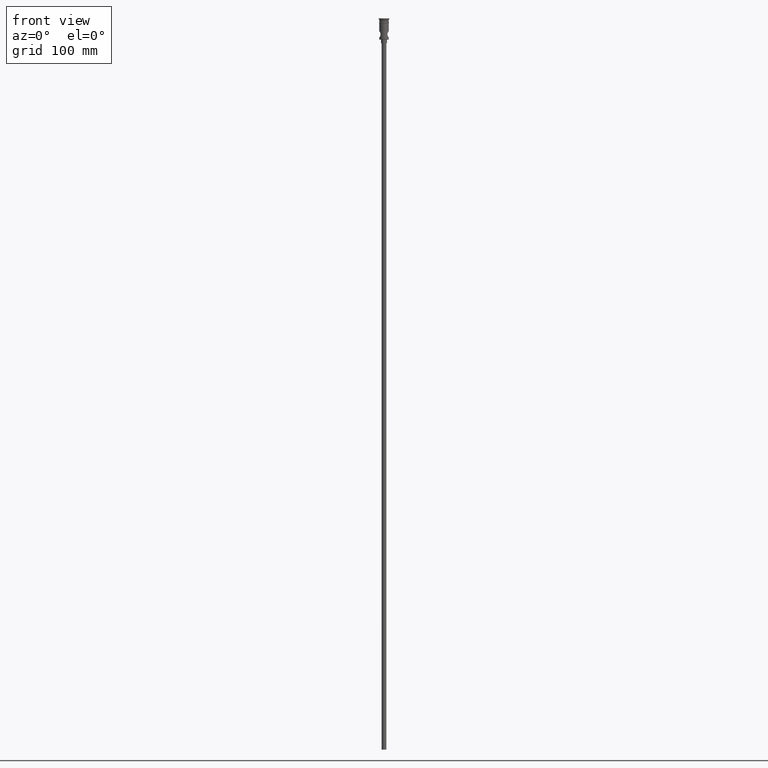
[diagram: clean part render]
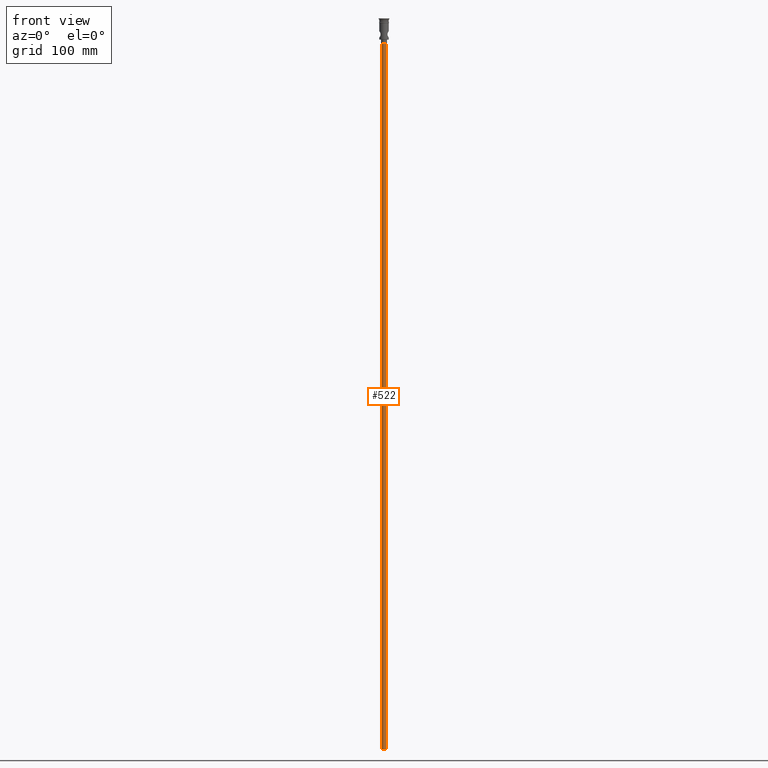
[diagram: same view with one face highlighted and labeled with its STEP entity id]
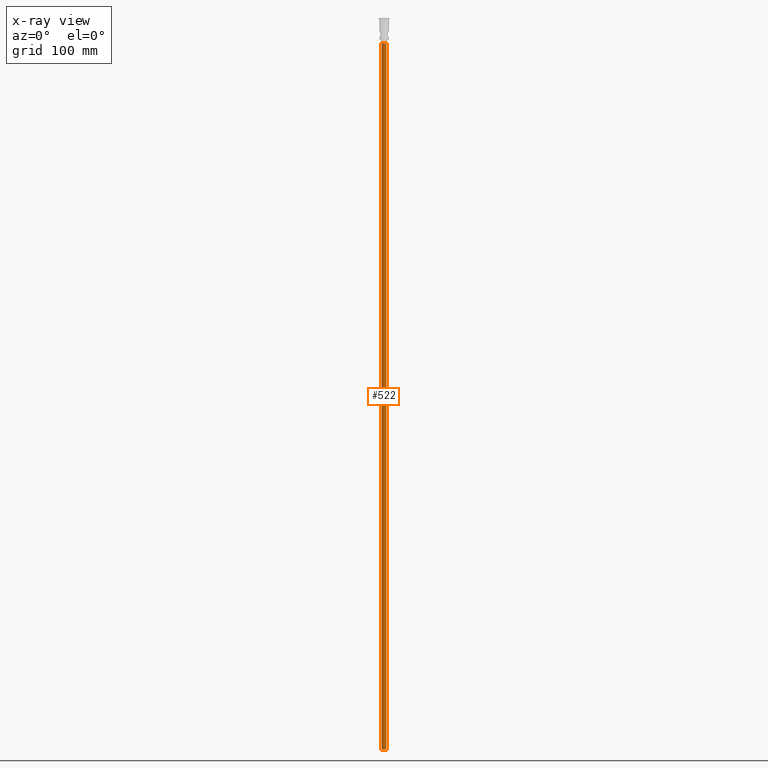
[diagram: x-ray of the same camera — body ghosted, the highlighted face saturated]
A machine part, front view. The second image highlights one B-rep face of the part: STEP entity #522.
The next image is the same camera in x-ray: the body ghosted, the highlighted face saturated — about 0% of this face is hidden behind the body in this view.
In plain terms, the highlighted cylindrical surface (edge-blend (fillet) strip) has radius 2 mm, axis along (-0, -0, 1).
Its self-contained STEP definition (entity closure, byte-faithful):
#26 = LINE ( 'NONE', #352, #1029 ) ;
#47 = LINE ( 'NONE', #478, #167 ) ;
#67 = CARTESIAN_POINT ( 'NONE',  ( 2.000000000000000000, 0.000000000000000000, -618.0000000000000000 ) ) ;
#98 = DIRECTION ( 'NONE',  ( -1.000000000000000000, 0.000000000000000000, 0.000000000000000000 ) ) ;
#151 = VERTEX_POINT ( 'NONE', #661 ) ;
#167 = VECTOR ( 'NONE', #294, 1000.000000000000000 ) ;
#236 = VERTEX_POINT ( 'NONE', #630 ) ;
#275 = EDGE_CURVE ( 'NONE', #236, #938, #26, .T. ) ;
#294 = DIRECTION ( 'NONE',  ( -0.000000000000000000, -0.000000000000000000, 1.000000000000000000 ) ) ;
#352 = CARTESIAN_POINT ( 'NONE',  ( -2.000000000000000000, 2.449293598294706414E-16, -618.0000000000000000 ) ) ;
#395 = CARTESIAN_POINT ( 'NONE',  ( -2.000000000000000000, 2.449293598294706414E-16, -20.99999999999999645 ) ) ;
#449 = FACE_OUTER_BOUND ( 'NONE', #578, .T. ) ;
#451 = ORIENTED_EDGE ( 'NONE', *, *, #1189, .T. ) ;
#468 = DIRECTION ( 'NONE',  ( -0.000000000000000000, -0.000000000000000000, 1.000000000000000000 ) ) ;
#478 = CARTESIAN_POINT ( 'NONE',  ( 2.000000000000000000, 0.000000000000000000, -618.0000000000000000 ) ) ;
#516 = DIRECTION ( 'NONE',  ( -1.000000000000000000, 0.000000000000000000, 0.000000000000000000 ) ) ;
#522 = ADVANCED_FACE ( 'NONE', ( #449 ), #1339, .T. ) ;
#578 = EDGE_LOOP ( 'NONE', ( #1263, #1229, #451, #1102 ) ) ;
#591 = EDGE_CURVE ( 'NONE', #871, #236, #1407, .T. ) ;
#626 = EDGE_CURVE ( 'NONE', #151, #938, #909, .T. ) ;
#628 = CARTESIAN_POINT ( 'NONE',  ( 0.000000000000000000, 0.000000000000000000, -618.0000000000000000 ) ) ;
#630 = CARTESIAN_POINT ( 'NONE',  ( -2.000000000000000000, 2.449293598294706414E-16, -618.0000000000000000 ) ) ;
#661 = CARTESIAN_POINT ( 'NONE',  ( 2.000000000000000000, 0.000000000000000000, -20.99999999999999645 ) ) ;
#721 = DIRECTION ( 'NONE',  ( 1.000000000000000000, 0.000000000000000000, 0.000000000000000000 ) ) ;
#775 = CARTESIAN_POINT ( 'NONE',  ( 0.000000000000000000, 0.000000000000000000, -618.0000000000000000 ) ) ;
#871 = VERTEX_POINT ( 'NONE', #67 ) ;
#909 = CIRCLE ( 'NONE', #1207, 2.000000000000000000 ) ;
#938 = VERTEX_POINT ( 'NONE', #395 ) ;
#986 = DIRECTION ( 'NONE',  ( 0.000000000000000000, 0.000000000000000000, -1.000000000000000000 ) ) ;
#1029 = VECTOR ( 'NONE', #468, 1000.000000000000000 ) ;
#1072 = AXIS2_PLACEMENT_3D ( 'NONE', #628, #986, #516 ) ;
#1102 = ORIENTED_EDGE ( 'NONE', *, *, #626, .T. ) ;
#1178 = DIRECTION ( 'NONE',  ( 0.000000000000000000, 0.000000000000000000, -1.000000000000000000 ) ) ;
#1189 = EDGE_CURVE ( 'NONE', #871, #151, #47, .T. ) ;
#1207 = AXIS2_PLACEMENT_3D ( 'NONE', #1427, #1178, #98 ) ;
#1225 = DIRECTION ( 'NONE',  ( -0.000000000000000000, -0.000000000000000000, 1.000000000000000000 ) ) ;
#1229 = ORIENTED_EDGE ( 'NONE', *, *, #591, .F. ) ;
#1263 = ORIENTED_EDGE ( 'NONE', *, *, #275, .F. ) ;
#1339 = CYLINDRICAL_SURFACE ( 'NONE', #1403, 2.000000000000000000 ) ;
#1403 = AXIS2_PLACEMENT_3D ( 'NONE', #775, #1225, #721 ) ;
#1407 = CIRCLE ( 'NONE', #1072, 2.000000000000000000 ) ;
#1427 = CARTESIAN_POINT ( 'NONE',  ( 0.000000000000000000, 0.000000000000000000, -20.99999999999999645 ) ) ;